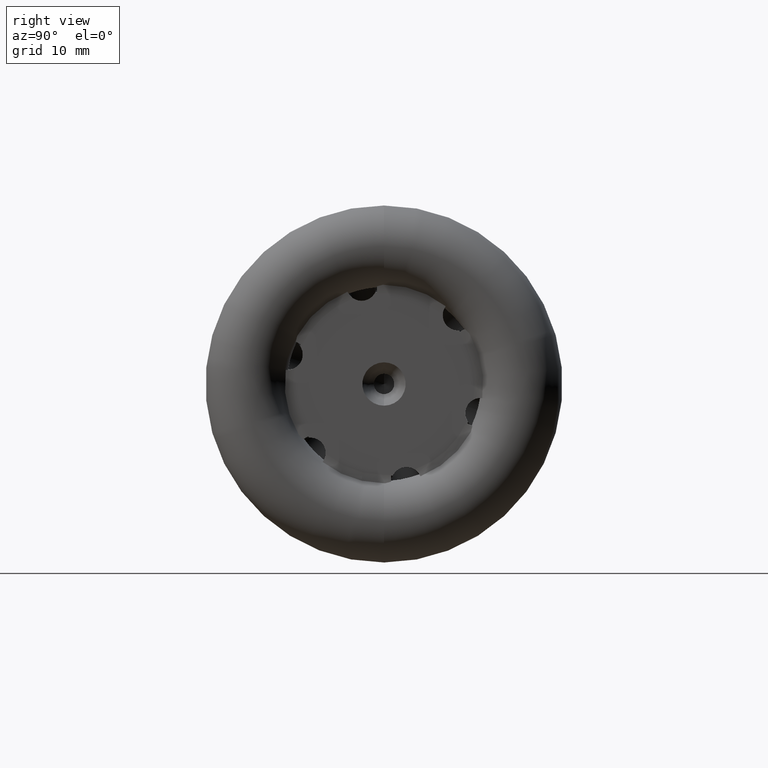
[diagram: clean part render]
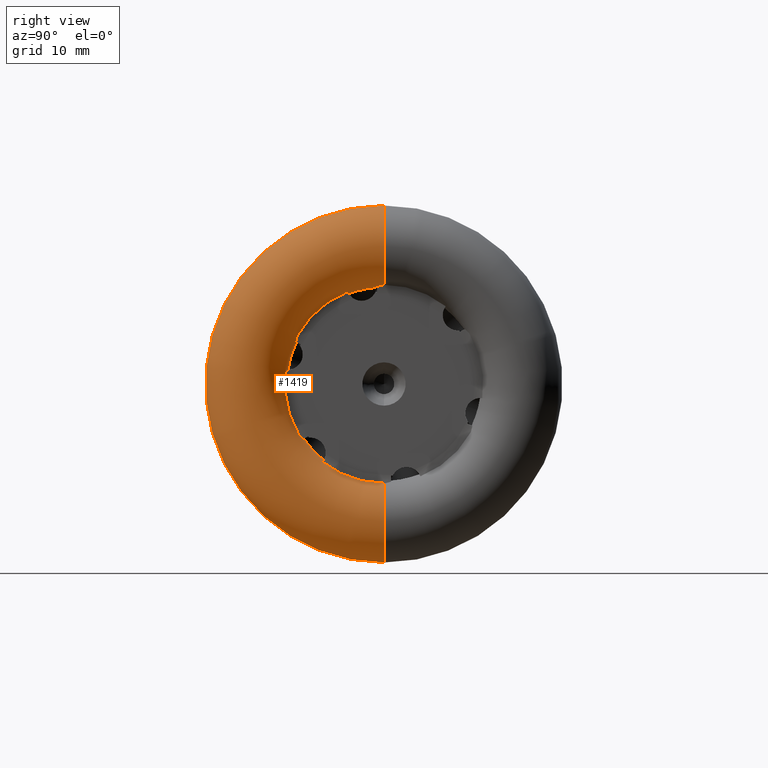
[diagram: same view with one face highlighted and labeled with its STEP entity id]
A machine part, right view. The second image highlights one B-rep face of the part: STEP entity #1419.
In plain terms, the highlighted toroidal blend (fillet) surface has major radius 13.5005 mm and minor (blend) radius 4 mm.
Its self-contained STEP definition (entity closure, byte-faithful):
#42 = AXIS2_PLACEMENT_3D ( 'NONE', #3583, #1800, #6730 ) ;
#84 = VERTEX_POINT ( 'NONE', #8210 ) ;
#130 = VERTEX_POINT ( 'NONE', #515 ) ;
#142 = CARTESIAN_POINT ( 'NONE',  ( -1.772025685624989900, -8.506342917676480700, 4.722037068681435000 ) ) ;
#174 = DIRECTION ( 'NONE',  ( 0.0000000000000000000, 0.0000000000000000000, -1.000000000000000000 ) ) ;
#265 = CARTESIAN_POINT ( 'NONE',  ( -2.208985688298947800, -5.941089245337296100, -7.535162482510355800 ) ) ;
#274 = CARTESIAN_POINT ( 'NONE',  ( -2.954108124689515300, -0.6999999999999325700, 9.474683627943205600 ) ) ;
#326 = CIRCLE ( 'NONE', #2356, 9.500506820670933500 ) ;
#400 = EDGE_CURVE ( 'NONE', #7420, #6697, #5659, .T. ) ;
#515 = CARTESIAN_POINT ( 'NONE',  ( -3.104893265785153600, -0.6999999999999325700, 9.474683627943205600 ) ) ;
#543 = EDGE_CURVE ( 'NONE', #6062, #585, #2799, .T. ) ;
#561 = VERTEX_POINT ( 'NONE', #6303 ) ;
#585 = VERTEX_POINT ( 'NONE', #3156 ) ;
#622 = B_SPLINE_CURVE_WITH_KNOTS ( 'NONE', 3,
 ( #4803, #1610, #7365, #265, #6639, #4182 ),
 .UNSPECIFIED., .F., .F.,
 ( 4, 2, 4 ),
 ( 0.002629385560703513700, 0.003307473324562947700, 0.003985561088422381700 ),
 .UNSPECIFIED. ) ;
#668 = B_SPLINE_CURVE_WITH_KNOTS ( 'NONE', 3,
 ( #7204, #6659, #5981, #2811 ),
 .UNSPECIFIED., .F., .F.,
 ( 4, 4 ),
 ( 0.002629123085290399000, 0.003368668866520317300 ),
 .UNSPECIFIED. ) ;
#807 = CARTESIAN_POINT ( 'NONE',  ( -2.215451044756586300, -8.660438280219960200, 4.143581336058959500 ) ) ;
#833 = CARTESIAN_POINT ( 'NONE',  ( -1.772025685624983900, 0.0000000000000000000, 0.0000000000000000000 ) ) ;
#848 = AXIS2_PLACEMENT_3D ( 'NONE', #6143, #4093, #2280 ) ;
#865 = DIRECTION ( 'NONE',  ( -1.000000000000000000, 0.0000000000000000000, 0.0000000000000000000 ) ) ;
#872 = CARTESIAN_POINT ( 'NONE',  ( -2.215451044756603100, -7.918665839784087400, -5.428368890548233200 ) ) ;
#894 = CIRCLE ( 'NONE', #848, 17.50050682067093200 ) ;
#904 = CARTESIAN_POINT ( 'NONE',  ( -2.803232533338052300, -7.831926334464275100, -5.377783906140138000 ) ) ;
#913 = ORIENTED_EDGE ( 'NONE', *, *, #3217, .T. ) ;
#1051 = DIRECTION ( 'NONE',  ( -1.000000000000000000, 0.0000000000000000000, 0.0000000000000000000 ) ) ;
#1124 = CARTESIAN_POINT ( 'NONE',  ( -2.803232533338046100, -8.573260646012601100, 4.093755213144350900 ) ) ;
#1295 = EDGE_CURVE ( 'NONE', #6062, #3659, #1736, .T. ) ;
#1386 = DIRECTION ( 'NONE',  ( 0.0000000000000000000, -1.776356839400250500E-015, -1.000000000000000000 ) ) ;
#1395 = ORIENTED_EDGE ( 'NONE', *, *, #7904, .T. ) ;
#1419 = ADVANCED_FACE ( 'NONE', ( #6638 ), #3422, .T. ) ;
#1421 = CARTESIAN_POINT ( 'NONE',  ( -1.913101064592065000, -0.3189010238888860300, 9.676023612155638900 ) ) ;
#1545 = CARTESIAN_POINT ( 'NONE',  ( -1.772025685624987900, -0.1213207566687569300, 9.728349561210663400 ) ) ;
#1562 = CARTESIAN_POINT ( 'NONE',  ( -3.104893265785153600, -0.6999999999999325700, 9.474683627943205600 ) ) ;
#1595 = DIRECTION ( 'NONE',  ( 0.0000000000000000000, 0.0000000000000000000, -1.000000000000000000 ) ) ;
#1610 = CARTESIAN_POINT ( 'NONE',  ( -2.878972344875611700, -5.894490806445410200, -7.450812571951157500 ) ) ;
#1632 = DIRECTION ( 'NONE',  ( 1.000000000000000000, -0.0000000000000000000, -0.0000000000000000000 ) ) ;
#1664 = AXIS2_PLACEMENT_3D ( 'NONE', #2375, #1826, #6921 ) ;
#1733 = CARTESIAN_POINT ( 'NONE',  ( -1.772025685624983900, 0.0000000000000000000, 0.0000000000000000000 ) ) ;
#1736 = B_SPLINE_CURVE_WITH_KNOTS ( 'NONE', 3,
 ( #872, #3440, #904, #6060 ),
 .UNSPECIFIED., .F., .F.,
 ( 4, 4 ),
 ( 0.0004773247027201981100, 0.001370619716810989700 ),
 .UNSPECIFIED. ) ;
#1782 = ORIENTED_EDGE ( 'NONE', *, *, #7362, .F. ) ;
#1783 = AXIS2_PLACEMENT_3D ( 'NONE', #7991, #6158, #2882 ) ;
#1796 = CARTESIAN_POINT ( 'NONE',  ( -1.772025685624983900, 0.0000000000000000000, 0.0000000000000000000 ) ) ;
#1800 = DIRECTION ( 'NONE',  ( 1.000000000000000000, -0.0000000000000000000, -0.0000000000000000000 ) ) ;
#1802 = CARTESIAN_POINT ( 'NONE',  ( -3.104893265785153600, -8.573260646012597500, 4.093755213144349100 ) ) ;
#1826 = DIRECTION ( 'NONE',  ( 0.0000000000000000000, 1.000000000000000000, -1.224646799147353200E-016 ) ) ;
#1838 = CARTESIAN_POINT ( 'NONE',  ( -2.215451044756603100, -7.918665839784087400, -5.428368890548233200 ) ) ;
#1840 = EDGE_CURVE ( 'NONE', #7121, #3504, #4978, .T. ) ;
#1872 = CARTESIAN_POINT ( 'NONE',  ( -2.168892073316946800, -9.506796683544273200, 1.377793629471692600 ) ) ;
#2009 = CARTESIAN_POINT ( 'NONE',  ( -1.772025685624983900, 1.191471854361107500E-015, 9.729106018083390600 ) ) ;
#2073 = CARTESIAN_POINT ( 'NONE',  ( -3.104893265785153100, 2.143193966139108100E-015, 17.50050682067093200 ) ) ;
#2114 = EDGE_CURVE ( 'NONE', #84, #561, #3936, .T. ) ;
#2201 = CARTESIAN_POINT ( 'NONE',  ( -1.772025685640108400, -6.015627636643170500, -7.646419295870279200 ) ) ;
#2273 = CARTESIAN_POINT ( 'NONE',  ( -3.104893265785153600, -3.466785366053354500, 8.845395925301096100 ) ) ;
#2280 = DIRECTION ( 'NONE',  ( 0.0000000000000000000, 0.0000000000000000000, -1.000000000000000000 ) ) ;
#2356 = AXIS2_PLACEMENT_3D ( 'NONE', #5460, #1632, #2891 ) ;
#2375 = CARTESIAN_POINT ( 'NONE',  ( -3.104893265785153100, 1.653335246480166800E-015, 13.50050682067093400 ) ) ;
#2431 = ORIENTED_EDGE ( 'NONE', *, *, #3860, .F. ) ;
#2439 = EDGE_CURVE ( 'NONE', #7326, #130, #6101, .T. ) ;
#2453 = VERTEX_POINT ( 'NONE', #2201 ) ;
#2509 = AXIS2_PLACEMENT_3D ( 'NONE', #833, #865, #1386 ) ;
#2645 = ORIENTED_EDGE ( 'NONE', *, *, #7001, .T. ) ;
#2652 = CARTESIAN_POINT ( 'NONE',  ( -3.104893265785153100, 0.0000000000000000000, -13.50050682067093400 ) ) ;
#2732 = CARTESIAN_POINT ( 'NONE',  ( -1.913101064621297100, -8.558956180145974800, 4.524533115381978600 ) ) ;
#2799 = B_SPLINE_CURVE_WITH_KNOTS ( 'NONE', 3,
 ( #1838, #5050, #6328, #6953 ),
 .UNSPECIFIED., .F., .F.,
 ( 4, 4 ),
 ( 3.629628486607180700E-007, 0.0007452673023083718900 ),
 .UNSPECIFIED. ) ;
#2811 = CARTESIAN_POINT ( 'NONE',  ( -2.371255851225761500, -9.468643188315566000, 1.377793629471567100 ) ) ;
#2882 = DIRECTION ( 'NONE',  ( 0.0000000000000000000, 0.0000000000000000000, -1.000000000000000000 ) ) ;
#2891 = DIRECTION ( 'NONE',  ( 0.0000000000000000000, 0.0000000000000000000, -1.000000000000000000 ) ) ;
#2892 = AXIS2_PLACEMENT_3D ( 'NONE', #1733, #1051, #3682 ) ;
#2896 = VERTEX_POINT ( 'NONE', #7533 ) ;
#2937 = CARTESIAN_POINT ( 'NONE',  ( -2.215451044756586300, -8.660438280219960200, 4.143581336058959500 ) ) ;
#2981 = EDGE_LOOP ( 'NONE', ( #3142, #2645, #4119, #3014, #8078, #4974, #5336, #4378, #3414, #7367, #1782, #4542, #2431, #5109, #913, #5386, #6682, #6868, #1395, #3226 ) ) ;
#3002 = CIRCLE ( 'NONE', #2509, 9.729106018083390600 ) ;
#3014 = ORIENTED_EDGE ( 'NONE', *, *, #3733, .T. ) ;
#3050 = B_SPLINE_CURVE_WITH_KNOTS ( 'NONE', 3,
 ( #2273, #6807, #3629, #6832, #3655, #3597 ),
 .UNSPECIFIED., .F., .F.,
 ( 4, 2, 4 ),
 ( 0.002629075266955919900, 0.003307164348767922600, 0.003985253430579925200 ),
 .UNSPECIFIED. ) ;
#3116 = CARTESIAN_POINT ( 'NONE',  ( -1.967374074145650200, -9.561124982549301900, 1.379054341608375800 ) ) ;
#3142 = ORIENTED_EDGE ( 'NONE', *, *, #8231, .F. ) ;
#3156 = CARTESIAN_POINT ( 'NONE',  ( -1.772025685624991400, -8.342575517928164400, -5.005690525668962100 ) ) ;
#3217 = EDGE_CURVE ( 'NONE', #3504, #4772, #3002, .T. ) ;
#3226 = ORIENTED_EDGE ( 'NONE', *, *, #400, .T. ) ;
#3414 = ORIENTED_EDGE ( 'NONE', *, *, #5175, .T. ) ;
#3422 = TOROIDAL_SURFACE ( 'NONE', #42, 13.50050682067093400, 4.000000000000000000 ) ;
#3440 = CARTESIAN_POINT ( 'NONE',  ( -2.506061907281327700, -7.861258251832023100, -5.394889774766393300 ) ) ;
#3504 = VERTEX_POINT ( 'NONE', #7694 ) ;
#3536 = VERTEX_POINT ( 'NONE', #5138 ) ;
#3583 = CARTESIAN_POINT ( 'NONE',  ( -3.104893265785153100, 0.0000000000000000000, 0.0000000000000000000 ) ) ;
#3597 = CARTESIAN_POINT ( 'NONE',  ( -1.772025685640049800, -3.574731816515998300, 9.048579797459435500 ) ) ;
#3626 = B_SPLINE_CURVE_WITH_KNOTS ( 'NONE', 3,
 ( #4583, #5833, #1421, #5801 ),
 .UNSPECIFIED., .F., .F.,
 ( 4, 4 ),
 ( 2.658857173754761900E-007, 0.0007451701733304536900 ),
 .UNSPECIFIED. ) ;
#3629 = CARTESIAN_POINT ( 'NONE',  ( -2.654613128381148700, -3.477500484118971600, 8.861607305407318300 ) ) ;
#3655 = CARTESIAN_POINT ( 'NONE',  ( -1.986843762713838700, -3.544340167659835800, 8.978956724305780000 ) ) ;
#3659 = VERTEX_POINT ( 'NONE', #7291 ) ;
#3682 = DIRECTION ( 'NONE',  ( 0.0000000000000000000, 1.119104808822157700E-013, -1.000000000000000000 ) ) ;
#3733 = EDGE_CURVE ( 'NONE', #561, #2453, #8018, .T. ) ;
#3860 = EDGE_CURVE ( 'NONE', #7121, #2896, #4040, .T. ) ;
#3908 = CARTESIAN_POINT ( 'NONE',  ( -3.104893265785153600, -3.466785366053354500, 8.845395925301096100 ) ) ;
#3936 = CIRCLE ( 'NONE', #5110, 4.000000000000000000 ) ;
#3983 = AXIS2_PLACEMENT_3D ( 'NONE', #1796, #6289, #6966 ) ;
#4019 = CARTESIAN_POINT ( 'NONE',  ( -3.104893265785153600, -5.894490806445412000, -7.450812571951158400 ) ) ;
#4040 = B_SPLINE_CURVE_WITH_KNOTS ( 'NONE', 3,
 ( #2937, #8144, #1124, #1802 ),
 .UNSPECIFIED., .F., .F.,
 ( 4, 4 ),
 ( 0.0004773247027201810400, 0.001370619716810990100 ),
 .UNSPECIFIED. ) ;
#4093 = DIRECTION ( 'NONE',  ( 1.000000000000000000, -0.0000000000000000000, -0.0000000000000000000 ) ) ;
#4119 = ORIENTED_EDGE ( 'NONE', *, *, #2114, .T. ) ;
#4182 = CARTESIAN_POINT ( 'NONE',  ( -1.772025685640108400, -6.015627636643170500, -7.646419295870279200 ) ) ;
#4378 = ORIENTED_EDGE ( 'NONE', *, *, #543, .T. ) ;
#4405 = CARTESIAN_POINT ( 'NONE',  ( -2.215451044756586300, -8.660438280219960200, 4.143581336058959500 ) ) ;
#4457 = VERTEX_POINT ( 'NONE', #3908 ) ;
#4499 = VERTEX_POINT ( 'NONE', #4019 ) ;
#4509 = CIRCLE ( 'NONE', #7411, 9.500506820670933500 ) ;
#4542 = ORIENTED_EDGE ( 'NONE', *, *, #4979, .F. ) ;
#4583 = CARTESIAN_POINT ( 'NONE',  ( -2.215451044728364400, -0.6999999999999319000, 9.575095691122834700 ) ) ;
#4772 = VERTEX_POINT ( 'NONE', #5158 ) ;
#4803 = CARTESIAN_POINT ( 'NONE',  ( -3.104893265785153600, -5.894490806445412000, -7.450812571951158400 ) ) ;
#4829 = CARTESIAN_POINT ( 'NONE',  ( -3.104893265785153600, 0.0000000000000000000, 0.0000000000000000000 ) ) ;
#4861 = DIRECTION ( 'NONE',  ( 0.0000000000000000000, 0.0000000000000000000, -1.000000000000000000 ) ) ;
#4974 = ORIENTED_EDGE ( 'NONE', *, *, #5562, .F. ) ;
#4978 = B_SPLINE_CURVE_WITH_KNOTS ( 'NONE', 3,
 ( #807, #5342, #2732, #142 ),
 .UNSPECIFIED., .F., .F.,
 ( 4, 4 ),
 ( 2.659884375745142400E-007, 0.0007451702761233398700 ),
 .UNSPECIFIED. ) ;
#4979 = EDGE_CURVE ( 'NONE', #2896, #3536, #4509, .T. ) ;
#5050 = CARTESIAN_POINT ( 'NONE',  ( -2.058855575913896500, -8.055488009678430900, -5.291944142466593200 ) ) ;
#5104 = B_SPLINE_CURVE_WITH_KNOTS ( 'NONE', 3,
 ( #8211, #1872, #3116, #5710 ),
 .UNSPECIFIED., .F., .F.,
 ( 4, 4 ),
 ( 0.003368668866520317300, 0.003985300842898741000 ),
 .UNSPECIFIED. ) ;
#5109 = ORIENTED_EDGE ( 'NONE', *, *, #1840, .T. ) ;
#5110 = AXIS2_PLACEMENT_3D ( 'NONE', #2652, #7127, #174 ) ;
#5138 = CARTESIAN_POINT ( 'NONE',  ( -3.104893265785153600, -9.399838369368875800, 1.379372494779990100 ) ) ;
#5158 = CARTESIAN_POINT ( 'NONE',  ( -1.772025685640049800, -3.574731816515998300, 9.048579797459435500 ) ) ;
#5175 = EDGE_CURVE ( 'NONE', #585, #6731, #7190, .T. ) ;
#5190 = VERTEX_POINT ( 'NONE', #6236 ) ;
#5206 = CARTESIAN_POINT ( 'NONE',  ( -1.772025685640050500, -9.629807176532784400, 1.386476705105613300 ) ) ;
#5336 = ORIENTED_EDGE ( 'NONE', *, *, #1295, .F. ) ;
#5342 = CARTESIAN_POINT ( 'NONE',  ( -2.058855540561778300, -8.610702056395357600, 4.330285227178444900 ) ) ;
#5386 = ORIENTED_EDGE ( 'NONE', *, *, #5617, .F. ) ;
#5413 = CARTESIAN_POINT ( 'NONE',  ( -2.360727313756944200, -0.6999999999999321200, 9.541874049890791900 ) ) ;
#5418 = CARTESIAN_POINT ( 'NONE',  ( -1.772025685624983900, 0.0000000000000000000, 0.0000000000000000000 ) ) ;
#5460 = CARTESIAN_POINT ( 'NONE',  ( -3.104893265785153600, 0.0000000000000000000, 0.0000000000000000000 ) ) ;
#5478 = CIRCLE ( 'NONE', #1664, 4.000000000000000000 ) ;
#5552 = DIRECTION ( 'NONE',  ( 1.000000000000000000, -0.0000000000000000000, -0.0000000000000000000 ) ) ;
#5562 = EDGE_CURVE ( 'NONE', #3659, #4499, #326, .T. ) ;
#5593 = CIRCLE ( 'NONE', #1783, 9.500506820670933500 ) ;
#5617 = EDGE_CURVE ( 'NONE', #4457, #4772, #3050, .T. ) ;
#5659 = CIRCLE ( 'NONE', #2892, 9.729106018083390600 ) ;
#5710 = CARTESIAN_POINT ( 'NONE',  ( -1.772025685640050500, -9.629807176532784400, 1.386476705105613300 ) ) ;
#5762 = EDGE_CURVE ( 'NONE', #130, #4457, #5593, .T. ) ;
#5801 = CARTESIAN_POINT ( 'NONE',  ( -1.772025685624987900, -0.1213207566687569300, 9.728349561210663400 ) ) ;
#5833 = CARTESIAN_POINT ( 'NONE',  ( -2.058855540517394300, -0.5132239679232250000, 9.624560312642865200 ) ) ;
#5954 = CARTESIAN_POINT ( 'NONE',  ( -2.215451044728364400, -0.6999999999999319000, 9.575095691122834700 ) ) ;
#5981 = CARTESIAN_POINT ( 'NONE',  ( -2.613956982466429000, -9.422884522666590700, 1.377793629471416400 ) ) ;
#6022 = CARTESIAN_POINT ( 'NONE',  ( -2.215451044756603100, -7.918665839784087400, -5.428368890548233200 ) ) ;
#6060 = CARTESIAN_POINT ( 'NONE',  ( -3.104893265785153600, -7.831926334464273300, -5.377783906140138000 ) ) ;
#6061 = CARTESIAN_POINT ( 'NONE',  ( -2.803960690649519400, -0.6999999999999324500, 9.483254230210484100 ) ) ;
#6062 = VERTEX_POINT ( 'NONE', #6022 ) ;
#6101 = B_SPLINE_CURVE_WITH_KNOTS ( 'NONE', 3,
 ( #7957, #5413, #7285, #6061, #274, #1562 ),
 .UNSPECIFIED., .F., .F.,
 ( 4, 2, 4 ),
 ( 0.02200396182367282300, 0.02245056839217785000, 0.02289717496068287600 ),
 .UNSPECIFIED. ) ;
#6109 = EDGE_CURVE ( 'NONE', #4499, #2453, #622, .T. ) ;
#6143 = CARTESIAN_POINT ( 'NONE',  ( -3.104893265785153100, 0.0000000000000000000, 0.0000000000000000000 ) ) ;
#6157 = DIRECTION ( 'NONE',  ( -1.000000000000000000, 0.0000000000000000000, 0.0000000000000000000 ) ) ;
#6158 = DIRECTION ( 'NONE',  ( 1.000000000000000000, -0.0000000000000000000, -0.0000000000000000000 ) ) ;
#6236 = CARTESIAN_POINT ( 'NONE',  ( -2.371255851225761500, -9.468643188315566000, 1.377793629471567100 ) ) ;
#6289 = DIRECTION ( 'NONE',  ( -1.000000000000000000, 0.0000000000000000000, 0.0000000000000000000 ) ) ;
#6303 = CARTESIAN_POINT ( 'NONE',  ( -1.772025685624983900, 0.0000000000000000000, -9.729106018083397700 ) ) ;
#6328 = CARTESIAN_POINT ( 'NONE',  ( -1.913101089025129700, -8.197838683220519200, -5.150006949157732300 ) ) ;
#6638 = FACE_OUTER_BOUND ( 'NONE', #2981, .T. ) ;
#6639 = CARTESIAN_POINT ( 'NONE',  ( -1.986842439806843600, -5.970795551974488200, -7.585091995742083700 ) ) ;
#6659 = CARTESIAN_POINT ( 'NONE',  ( -2.858493808081425100, -9.399838369368877600, 1.379372494779989900 ) ) ;
#6682 = ORIENTED_EDGE ( 'NONE', *, *, #5762, .F. ) ;
#6697 = VERTEX_POINT ( 'NONE', #2009 ) ;
#6730 = DIRECTION ( 'NONE',  ( 0.0000000000000000000, 0.0000000000000000000, -1.000000000000000000 ) ) ;
#6731 = VERTEX_POINT ( 'NONE', #5206 ) ;
#6807 = CARTESIAN_POINT ( 'NONE',  ( -2.878969358473014100, -3.466785366053353600, 8.845395925301094300 ) ) ;
#6832 = CARTESIAN_POINT ( 'NONE',  ( -2.208986723319847500, -3.516174671945139000, 8.928142506635111900 ) ) ;
#6868 = ORIENTED_EDGE ( 'NONE', *, *, #2439, .F. ) ;
#6921 = DIRECTION ( 'NONE',  ( 0.0000000000000000000, 1.224646799147353000E-016, 1.000000000000000000 ) ) ;
#6953 = CARTESIAN_POINT ( 'NONE',  ( -1.772025685624991400, -8.342575517928164400, -5.005690525668962100 ) ) ;
#6966 = DIRECTION ( 'NONE',  ( 0.0000000000000000000, 0.0000000000000000000, -1.000000000000000000 ) ) ;
#7001 = EDGE_CURVE ( 'NONE', #7986, #84, #894, .T. ) ;
#7121 = VERTEX_POINT ( 'NONE', #4405 ) ;
#7127 = DIRECTION ( 'NONE',  ( -0.0000000000000000000, -1.000000000000000000, -0.0000000000000000000 ) ) ;
#7134 = EDGE_CURVE ( 'NONE', #5190, #6731, #5104, .T. ) ;
#7190 = CIRCLE ( 'NONE', #3983, 9.729106018083390600 ) ;
#7204 = CARTESIAN_POINT ( 'NONE',  ( -3.104893265785153600, -9.399838369368875800, 1.379372494779990100 ) ) ;
#7285 = CARTESIAN_POINT ( 'NONE',  ( -2.507482326038030800, -0.6999999999999323400, 9.516849396761395900 ) ) ;
#7291 = CARTESIAN_POINT ( 'NONE',  ( -3.104893265785153600, -7.831926334464273300, -5.377783906140138000 ) ) ;
#7326 = VERTEX_POINT ( 'NONE', #5954 ) ;
#7362 = EDGE_CURVE ( 'NONE', #3536, #5190, #668, .T. ) ;
#7365 = CARTESIAN_POINT ( 'NONE',  ( -2.654616448050894900, -5.903096528692882900, -7.468235099499338500 ) ) ;
#7367 = ORIENTED_EDGE ( 'NONE', *, *, #7134, .F. ) ;
#7411 = AXIS2_PLACEMENT_3D ( 'NONE', #4829, #5552, #4861 ) ;
#7420 = VERTEX_POINT ( 'NONE', #1545 ) ;
#7533 = CARTESIAN_POINT ( 'NONE',  ( -3.104893265785153600, -8.573260646012597500, 4.093755213144349100 ) ) ;
#7694 = CARTESIAN_POINT ( 'NONE',  ( -1.772025685624989900, -8.506342917676480700, 4.722037068681435000 ) ) ;
#7904 = EDGE_CURVE ( 'NONE', #7326, #7420, #3626, .T. ) ;
#7957 = CARTESIAN_POINT ( 'NONE',  ( -2.215451044728364400, -0.6999999999999319000, 9.575095691122834700 ) ) ;
#7986 = VERTEX_POINT ( 'NONE', #2073 ) ;
#7991 = CARTESIAN_POINT ( 'NONE',  ( -3.104893265785153600, 0.0000000000000000000, 0.0000000000000000000 ) ) ;
#8018 = CIRCLE ( 'NONE', #8106, 9.729106018083390600 ) ;
#8078 = ORIENTED_EDGE ( 'NONE', *, *, #6109, .F. ) ;
#8106 = AXIS2_PLACEMENT_3D ( 'NONE', #5418, #6157, #1595 ) ;
#8144 = CARTESIAN_POINT ( 'NONE',  ( -2.506061907281315700, -8.602740721480611100, 4.110604464413399700 ) ) ;
#8210 = CARTESIAN_POINT ( 'NONE',  ( -3.104893265785153100, 0.0000000000000000000, -17.50050682067093200 ) ) ;
#8211 = CARTESIAN_POINT ( 'NONE',  ( -2.371255851225761500, -9.468643188315566000, 1.377793629471567100 ) ) ;
#8231 = EDGE_CURVE ( 'NONE', #7986, #6697, #5478, .T. ) ;